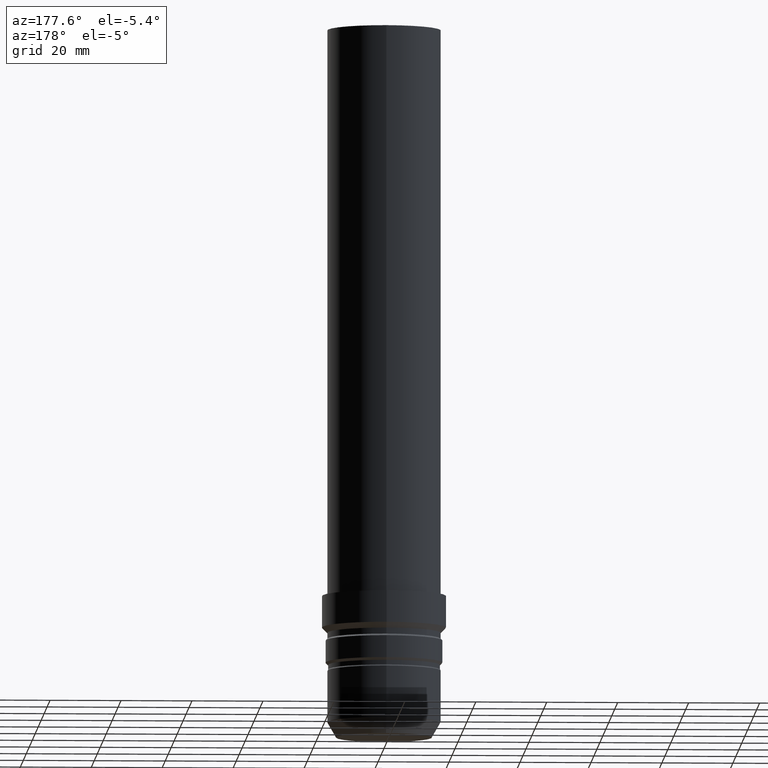
[diagram: clean part render]
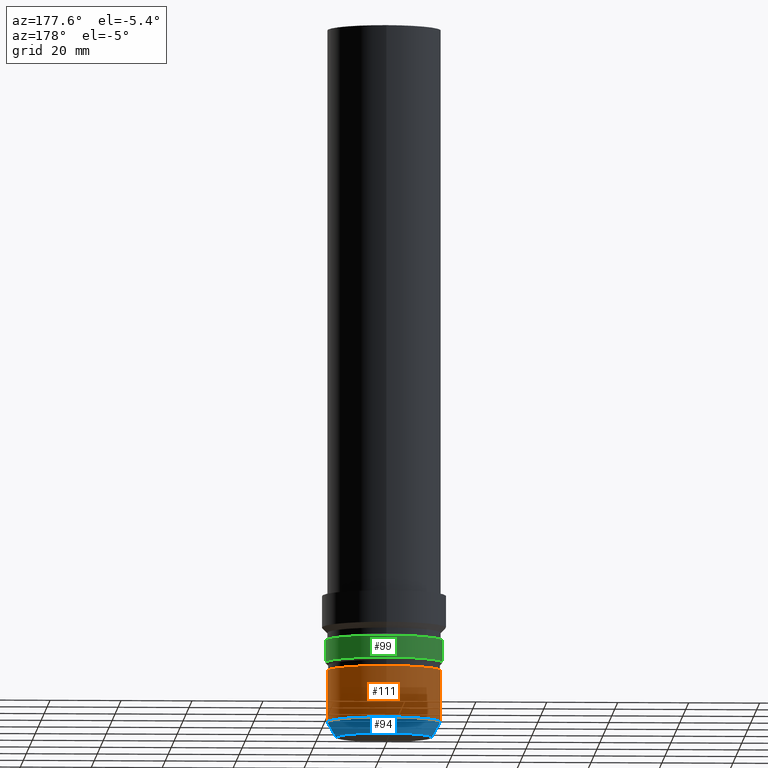
[diagram: same view with three faces highlighted in distinct colors, each labeled with its STEP entity id]
A machine part, auxiliary view with three faces highlighted in distinct colors.
Their STEP definitions:

[orange] entity #111 — the highlighted cylindrical surface (bore or boss wall) has radius 16 mm, axis along (0, -0, -1).
#52=EDGE_CURVE('Unnamed[1]',#139,#139,#140,.T.);
#74=EDGE_CURVE('Unnamed[1]',#174,#174,#175,.T.);
#111=ADVANCED_FACE('Unnamed[1]',(#232,#233),#234,.T.);
#139=VERTEX_POINT('',#256);
#140=CIRCLE('',#257,16.0);
#174=VERTEX_POINT('',#300);
#175=CIRCLE('',#301,16.0);
#232=FACE_BOUND('',#372,.T.);
#233=FACE_BOUND('',#373,.T.);
#234=CYLINDRICAL_SURFACE('',#374,16.0);
#256=CARTESIAN_POINT('',(-1.15444942240699E-015,16.0,18.8535898384868));
#257=AXIS2_PLACEMENT_3D('',#392,#393,#394);
#300=CARTESIAN_POINT('',(-2.65143809681212E-016,16.0,4.33012701892196));
#301=AXIS2_PLACEMENT_3D('',#431,#432,#433);
#372=EDGE_LOOP('',(#497));
#373=EDGE_LOOP('',(#498));
#374=AXIS2_PLACEMENT_3D('',#499,#500,#501);
#392=CARTESIAN_POINT('',(-1.154449422407E-015,2.02407412788415E-014,18.8535898384868));
#393=DIRECTION('',(6.12323399573676E-017,-1.07357492404576E-015,-1.0));
#394=DIRECTION('',(6.09103519881032E-032,1.0,-1.07357492404576E-015));
#431=CARTESIAN_POINT('',(-2.65143809681214E-016,4.64871578544724E-015,4.33012701892198));
#432=DIRECTION('',(6.12323399573676E-017,-1.07357492404576E-015,-1.0));
#433=DIRECTION('',(6.09103519881032E-032,1.0,-1.07357492404576E-015));
#497=ORIENTED_EDGE('',*,*,#74,.F.);
#498=ORIENTED_EDGE('',*,*,#52,.T.);
#499=CARTESIAN_POINT('',(-7.09796616044105E-016,1.24447285321444E-014,11.5918584287044));
#500=DIRECTION('',(6.12323399573677E-017,-1.07357492404576E-015,-1.0));
#501=DIRECTION('',(6.09103519881256E-032,1.0,-1.07357492404576E-015));

[blue] entity #94 — the highlighted conical surface has half-angle 30 deg.
#70=EDGE_CURVE('Unnamed[1]',#168,#168,#169,.T.);
#74=EDGE_CURVE('Unnamed[1]',#174,#174,#175,.T.);
#94=ADVANCED_FACE('Unnamed[1]',(#205,#206),#207,.T.);
#168=VERTEX_POINT('',#292);
#169=CIRCLE('',#293,13.5000000000001);
#174=VERTEX_POINT('',#300);
#175=CIRCLE('',#301,16.0);
#205=FACE_BOUND('',#338,.T.);
#206=FACE_BOUND('',#339,.T.);
#207=CONICAL_SURFACE('',#340,14.75,0.523598775598304);
#292=CARTESIAN_POINT('',(1.57772181044202E-030,13.5000000000001,-2.8421709430404E-014));
#293=AXIS2_PLACEMENT_3D('',#425,#426,#427);
#300=CARTESIAN_POINT('',(-2.65143809681212E-016,16.0,4.33012701892196));
#301=AXIS2_PLACEMENT_3D('',#431,#432,#433);
#338=EDGE_LOOP('',(#467));
#339=EDGE_LOOP('',(#468));
#340=AXIS2_PLACEMENT_3D('',#469,#470,#471);
#425=CARTESIAN_POINT('',(0.0,0.0,0.0));
#426=DIRECTION('',(6.12323399573677E-017,-1.07357492404566E-015,-1.0));
#427=DIRECTION('',(6.09103519880986E-032,1.0,-1.07357492404566E-015));
#431=CARTESIAN_POINT('',(-2.65143809681214E-016,4.64871578544724E-015,4.33012701892198));
#432=DIRECTION('',(6.12323399573676E-017,-1.07357492404576E-015,-1.0));
#433=DIRECTION('',(6.09103519881032E-032,1.0,-1.07357492404576E-015));
#467=ORIENTED_EDGE('',*,*,#70,.F.);
#468=ORIENTED_EDGE('',*,*,#74,.T.);
#469=CARTESIAN_POINT('',(-1.32571904840606E-016,2.32435789272365E-015,2.16506350946099));
#470=DIRECTION('',(-6.12323399573677E-017,1.0735749240456E-015,1.0));
#471=DIRECTION('',(6.0910351988095E-032,1.0,-1.0735749240456E-015));

[green] entity #99 — the highlighted cylindrical surface (bore or boss wall) has radius 16.5 mm, axis along (0, -0, -1).
#57=EDGE_CURVE('Unnamed[1]',#147,#147,#148,.T.);
#99=ADVANCED_FACE('Unnamed[1]',(#213,#214),#215,.T.);
#106=EDGE_CURVE('Unnamed[1]',#225,#225,#226,.T.);
#147=VERTEX_POINT('',#266);
#148=CIRCLE('',#267,16.5000000000002);
#213=FACE_BOUND('',#348,.T.);
#214=FACE_BOUND('',#349,.T.);
#215=CYLINDRICAL_SURFACE('',#350,16.5000000000001);
#225=VERTEX_POINT('',#363);
#226=CIRCLE('',#364,16.5000000000001);
#266=CARTESIAN_POINT('',(-1.6777661148318E-015,16.5000000000002,27.3999999999988));
#267=AXIS2_PLACEMENT_3D('',#401,#402,#403);
#348=EDGE_LOOP('',(#476));
#349=EDGE_LOOP('',(#477));
#350=AXIS2_PLACEMENT_3D('',#478,#479,#480);
#363=CARTESIAN_POINT('',(-1.29812560709621E-015,16.5000000000001,21.2000000000002));
#364=AXIS2_PLACEMENT_3D('',#490,#491,#492);
#401=CARTESIAN_POINT('',(-1.6777661148318E-015,2.941595291885E-014,27.3999999999989));
#402=DIRECTION('',(6.12323399573676E-017,-1.07357492404572E-015,-1.0));
#403=DIRECTION('',(6.09103519881139E-032,1.0,-1.07357492404572E-015));
#476=ORIENTED_EDGE('',*,*,#106,.F.);
#477=ORIENTED_EDGE('',*,*,#57,.T.);
#478=CARTESIAN_POINT('',(-1.48794586096401E-015,2.60878706543092E-014,24.2999999999996));
#479=DIRECTION('',(6.12323399573677E-017,-1.07357492404572E-015,-1.0));
#480=DIRECTION('',(6.09103519880924E-032,1.0,-1.07357492404572E-015));
#490=CARTESIAN_POINT('',(-1.29812560709621E-015,2.27597883897684E-014,21.2000000000003));
#491=DIRECTION('',(6.12323399573677E-017,-1.07357492404572E-015,-1.0));
#492=DIRECTION('',(6.09103519880926E-032,1.0,-1.07357492404572E-015));